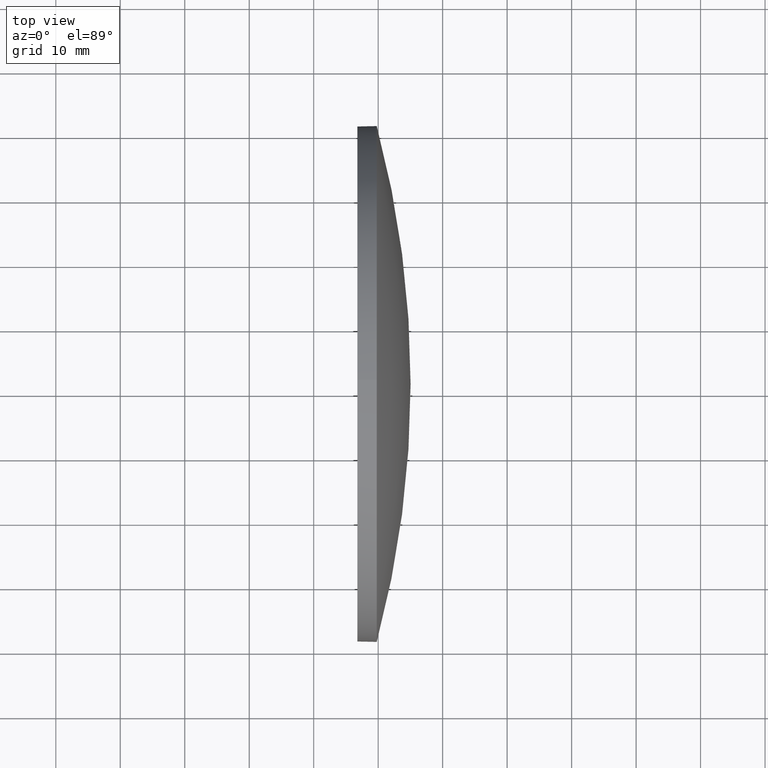
[diagram: clean part render]
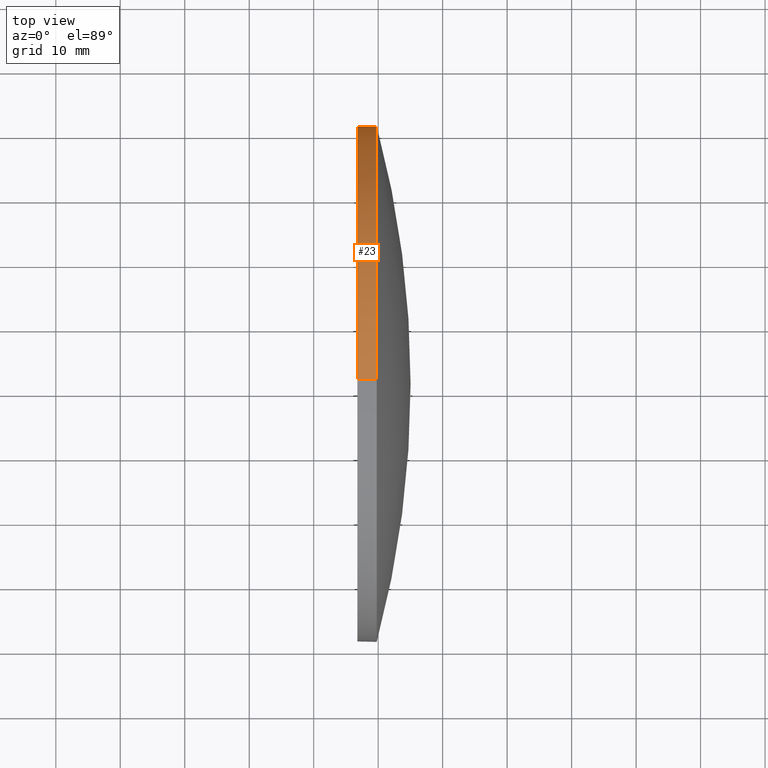
[diagram: same view with one face highlighted and labeled with its STEP entity id]
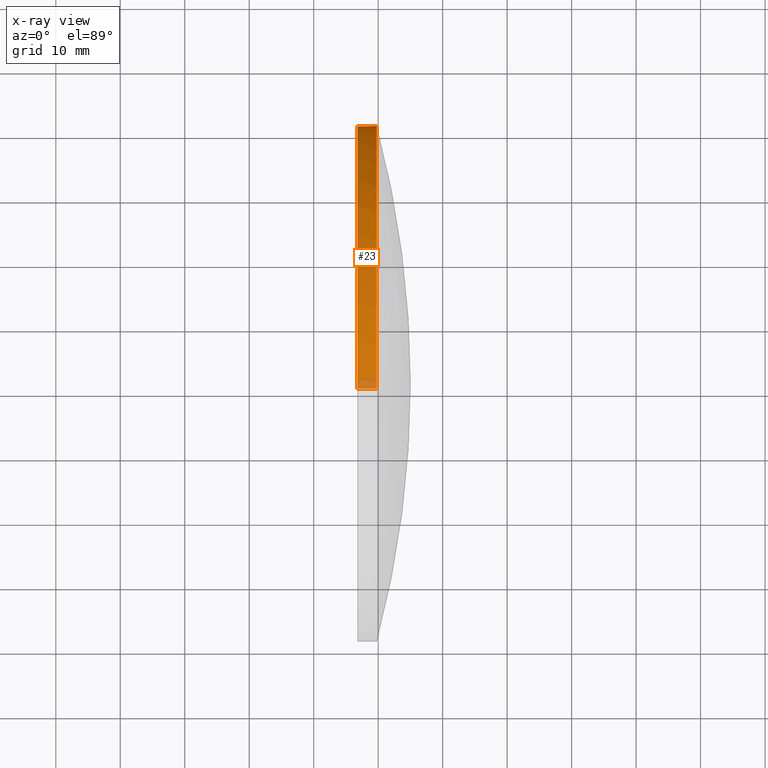
[diagram: x-ray of the same camera — body ghosted, the highlighted face saturated]
A machine part, top view. The second image highlights one B-rep face of the part: STEP entity #23.
The next image is the same camera in x-ray: the body ghosted, the highlighted face saturated — about 3% of this face is hidden behind the body in this view.
In plain terms, the highlighted cylindrical surface (partial cylindrical patch) has radius 40 mm, axis along (-1, -0, -0).
Its self-contained STEP definition (entity closure, byte-faithful):
#4 = DIRECTION ( 'NONE',  ( -1.000000000000000000, -0.0000000000000000000, -0.0000000000000000000 ) ) ;
#19 = CARTESIAN_POINT ( 'NONE',  ( 767.9518554358446600, 121.1916296255188900, 0.0000000000000000000 ) ) ;
#20 = VERTEX_POINT ( 'NONE', #88 ) ;
#21 = DIRECTION ( 'NONE',  ( 0.0000000000000000000, 0.0000000000000000000, 1.000000000000000000 ) ) ;
#23 = ADVANCED_FACE ( 'NONE', ( #26 ), #167, .T. ) ;
#24 = EDGE_CURVE ( 'NONE', #66, #20, #53, .T. ) ;
#26 = FACE_OUTER_BOUND ( 'NONE', #158, .T. ) ;
#28 = ORIENTED_EDGE ( 'NONE', *, *, #159, .T. ) ;
#33 = DIRECTION ( 'NONE',  ( -1.000000000000000000, -0.0000000000000000000, -0.0000000000000000000 ) ) ;
#34 = DIRECTION ( 'NONE',  ( 0.0000000000000000000, 0.0000000000000000000, 1.000000000000000000 ) ) ;
#38 = ORIENTED_EDGE ( 'NONE', *, *, #166, .T. ) ;
#39 = AXIS2_PLACEMENT_3D ( 'NONE', #19, #4, #144 ) ;
#53 = LINE ( 'NONE', #128, #137 ) ;
#55 = AXIS2_PLACEMENT_3D ( 'NONE', #135, #133, #34 ) ;
#57 = VERTEX_POINT ( 'NONE', #127 ) ;
#61 = CARTESIAN_POINT ( 'NONE',  ( 786.7768331134177500, 121.1916296255188900, -40.00000000000000700 ) ) ;
#66 = VERTEX_POINT ( 'NONE', #162 ) ;
#76 = DIRECTION ( 'NONE',  ( -1.000000000000000000, -0.0000000000000000000, -0.0000000000000000000 ) ) ;
#80 = CARTESIAN_POINT ( 'NONE',  ( 767.9518554358446600, 121.1916296255188900, -40.00000000000000700 ) ) ;
#82 = VECTOR ( 'NONE', #89, 1000.000000000000000 ) ;
#85 = ORIENTED_EDGE ( 'NONE', *, *, #24, .F. ) ;
#88 = CARTESIAN_POINT ( 'NONE',  ( 786.7768331134177500, 121.1916296255188900, 40.00000000000000700 ) ) ;
#89 = DIRECTION ( 'NONE',  ( -1.000000000000000000, -0.0000000000000000000, -0.0000000000000000000 ) ) ;
#93 = CARTESIAN_POINT ( 'NONE',  ( 789.7768331134177500, 121.1916296255188900, 0.0000000000000000000 ) ) ;
#103 = CIRCLE ( 'NONE', #55, 40.00000000000000700 ) ;
#105 = CARTESIAN_POINT ( 'NONE',  ( 789.7768331134177500, 121.1916296255188900, -40.00000000000000700 ) ) ;
#106 = CIRCLE ( 'NONE', #112, 40.00000000000000700 ) ;
#109 = DIRECTION ( 'NONE',  ( 0.0000000000000000000, 0.0000000000000000000, 1.000000000000000000 ) ) ;
#112 = AXIS2_PLACEMENT_3D ( 'NONE', #130, #33, #21 ) ;
#113 = CIRCLE ( 'NONE', #139, 40.00000000000000700 ) ;
#115 = EDGE_CURVE ( 'NONE', #20, #116, #106, .T. ) ;
#116 = VERTEX_POINT ( 'NONE', #61 ) ;
#124 = ORIENTED_EDGE ( 'NONE', *, *, #115, .F. ) ;
#127 = CARTESIAN_POINT ( 'NONE',  ( 789.7768331134177500, 161.1916296255188600, 4.898587196589406700E-015 ) ) ;
#128 = CARTESIAN_POINT ( 'NONE',  ( 767.9518554358446600, 121.1916296255188900, 40.00000000000000700 ) ) ;
#130 = CARTESIAN_POINT ( 'NONE',  ( 786.7768331134177500, 121.1916296255188900, 0.0000000000000000000 ) ) ;
#133 = DIRECTION ( 'NONE',  ( -1.000000000000000000, -0.0000000000000000000, -0.0000000000000000000 ) ) ;
#135 = CARTESIAN_POINT ( 'NONE',  ( 789.7768331134177500, 121.1916296255188900, 0.0000000000000000000 ) ) ;
#137 = VECTOR ( 'NONE', #146, 1000.000000000000000 ) ;
#139 = AXIS2_PLACEMENT_3D ( 'NONE', #93, #76, #109 ) ;
#144 = DIRECTION ( 'NONE',  ( 0.0000000000000000000, 0.0000000000000000000, 1.000000000000000000 ) ) ;
#146 = DIRECTION ( 'NONE',  ( -1.000000000000000000, -0.0000000000000000000, -0.0000000000000000000 ) ) ;
#149 = ORIENTED_EDGE ( 'NONE', *, *, #179, .T. ) ;
#153 = LINE ( 'NONE', #80, #82 ) ;
#158 = EDGE_LOOP ( 'NONE', ( #149, #28, #124, #85, #38 ) ) ;
#159 = EDGE_CURVE ( 'NONE', #186, #116, #153, .T. ) ;
#162 = CARTESIAN_POINT ( 'NONE',  ( 789.7768331134177500, 121.1916296255188900, 40.00000000000000700 ) ) ;
#166 = EDGE_CURVE ( 'NONE', #66, #57, #113, .T. ) ;
#167 = CYLINDRICAL_SURFACE ( 'NONE', #39, 40.00000000000000700 ) ;
#179 = EDGE_CURVE ( 'NONE', #57, #186, #103, .T. ) ;
#186 = VERTEX_POINT ( 'NONE', #105 ) ;